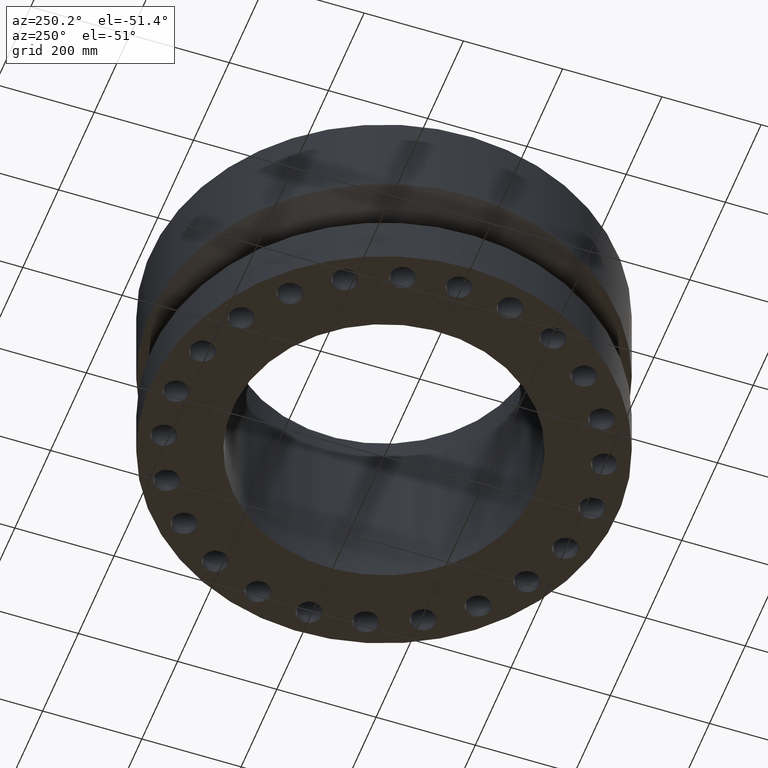
[diagram: clean part render]
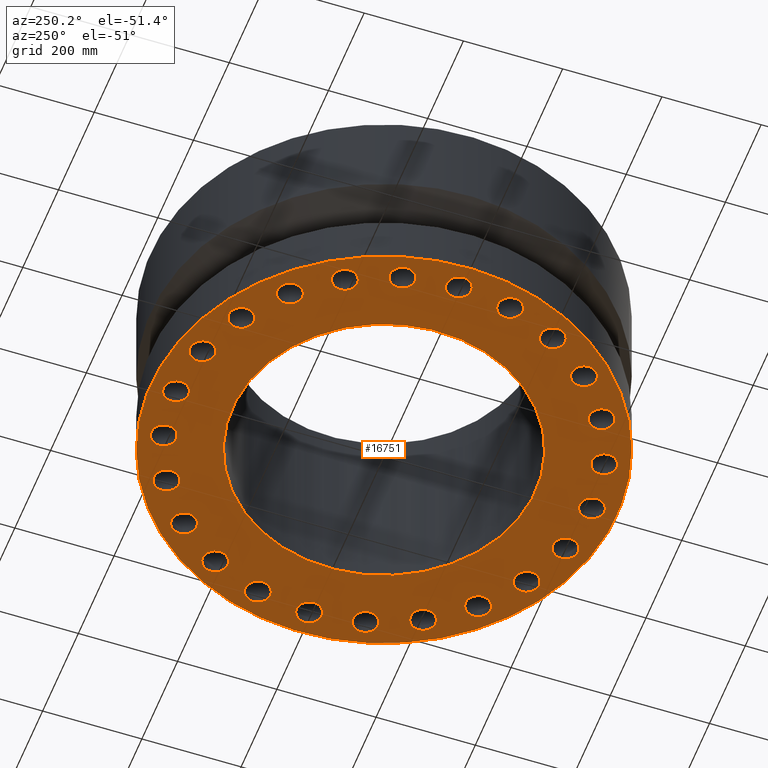
[diagram: same view with one face highlighted and labeled with its STEP entity id]
A machine part, auxiliary view. The second image highlights one B-rep face of the part: STEP entity #16751.
In plain terms, the highlighted planar face has unit normal (0, 0, 1).
Its self-contained STEP definition (entity closure, byte-faithful):
#51=AXIS2_PLACEMENT_3D('Circle Axis2P3D',#49,#50,$) ;
#560=AXIS2_PLACEMENT_3D('Circle Axis2P3D',#558,#559,$) ;
#577=AXIS2_PLACEMENT_3D('Circle Axis2P3D',#575,#576,$) ;
#603=AXIS2_PLACEMENT_3D('Circle Axis2P3D',#601,#602,$) ;
#670=AXIS2_PLACEMENT_3D('Circle Axis2P3D',#668,#669,$) ;
#689=AXIS2_PLACEMENT_3D('Circle Axis2P3D',#687,#688,$) ;
#713=AXIS2_PLACEMENT_3D('Circle Axis2P3D',#711,#712,$) ;
#732=AXIS2_PLACEMENT_3D('Circle Axis2P3D',#730,#731,$) ;
#756=AXIS2_PLACEMENT_3D('Circle Axis2P3D',#754,#755,$) ;
#775=AXIS2_PLACEMENT_3D('Circle Axis2P3D',#773,#774,$) ;
#799=AXIS2_PLACEMENT_3D('Circle Axis2P3D',#797,#798,$) ;
#818=AXIS2_PLACEMENT_3D('Circle Axis2P3D',#816,#817,$) ;
#842=AXIS2_PLACEMENT_3D('Circle Axis2P3D',#840,#841,$) ;
#861=AXIS2_PLACEMENT_3D('Circle Axis2P3D',#859,#860,$) ;
#885=AXIS2_PLACEMENT_3D('Circle Axis2P3D',#883,#884,$) ;
#904=AXIS2_PLACEMENT_3D('Circle Axis2P3D',#902,#903,$) ;
#928=AXIS2_PLACEMENT_3D('Circle Axis2P3D',#926,#927,$) ;
#947=AXIS2_PLACEMENT_3D('Circle Axis2P3D',#945,#946,$) ;
#971=AXIS2_PLACEMENT_3D('Circle Axis2P3D',#969,#970,$) ;
#990=AXIS2_PLACEMENT_3D('Circle Axis2P3D',#988,#989,$) ;
#1014=AXIS2_PLACEMENT_3D('Circle Axis2P3D',#1012,#1013,$) ;
#1033=AXIS2_PLACEMENT_3D('Circle Axis2P3D',#1031,#1032,$) ;
#1057=AXIS2_PLACEMENT_3D('Circle Axis2P3D',#1055,#1056,$) ;
#1076=AXIS2_PLACEMENT_3D('Circle Axis2P3D',#1074,#1075,$) ;
#1100=AXIS2_PLACEMENT_3D('Circle Axis2P3D',#1098,#1099,$) ;
#1119=AXIS2_PLACEMENT_3D('Circle Axis2P3D',#1117,#1118,$) ;
#1143=AXIS2_PLACEMENT_3D('Circle Axis2P3D',#1141,#1142,$) ;
#1162=AXIS2_PLACEMENT_3D('Circle Axis2P3D',#1160,#1161,$) ;
#1186=AXIS2_PLACEMENT_3D('Circle Axis2P3D',#1184,#1185,$) ;
#1205=AXIS2_PLACEMENT_3D('Circle Axis2P3D',#1203,#1204,$) ;
#1229=AXIS2_PLACEMENT_3D('Circle Axis2P3D',#1227,#1228,$) ;
#1248=AXIS2_PLACEMENT_3D('Circle Axis2P3D',#1246,#1247,$) ;
#1272=AXIS2_PLACEMENT_3D('Circle Axis2P3D',#1270,#1271,$) ;
#1291=AXIS2_PLACEMENT_3D('Circle Axis2P3D',#1289,#1290,$) ;
#1315=AXIS2_PLACEMENT_3D('Circle Axis2P3D',#1313,#1314,$) ;
#1334=AXIS2_PLACEMENT_3D('Circle Axis2P3D',#1332,#1333,$) ;
#1358=AXIS2_PLACEMENT_3D('Circle Axis2P3D',#1356,#1357,$) ;
#1377=AXIS2_PLACEMENT_3D('Circle Axis2P3D',#1375,#1376,$) ;
#1401=AXIS2_PLACEMENT_3D('Circle Axis2P3D',#1399,#1400,$) ;
#1420=AXIS2_PLACEMENT_3D('Circle Axis2P3D',#1418,#1419,$) ;
#1444=AXIS2_PLACEMENT_3D('Circle Axis2P3D',#1442,#1443,$) ;
#1463=AXIS2_PLACEMENT_3D('Circle Axis2P3D',#1461,#1462,$) ;
#1487=AXIS2_PLACEMENT_3D('Circle Axis2P3D',#1485,#1486,$) ;
#1506=AXIS2_PLACEMENT_3D('Circle Axis2P3D',#1504,#1505,$) ;
#1530=AXIS2_PLACEMENT_3D('Circle Axis2P3D',#1528,#1529,$) ;
#1549=AXIS2_PLACEMENT_3D('Circle Axis2P3D',#1547,#1548,$) ;
#1573=AXIS2_PLACEMENT_3D('Circle Axis2P3D',#1571,#1572,$) ;
#1592=AXIS2_PLACEMENT_3D('Circle Axis2P3D',#1590,#1591,$) ;
#1616=AXIS2_PLACEMENT_3D('Circle Axis2P3D',#1614,#1615,$) ;
#1635=AXIS2_PLACEMENT_3D('Circle Axis2P3D',#1633,#1634,$) ;
#16606=AXIS2_PLACEMENT_3D('Circle Axis2P3D',#16604,#16605,$) ;
#16632=AXIS2_PLACEMENT_3D('Circle Axis2P3D',#16630,#16631,$) ;
#16645=AXIS2_PLACEMENT_3D('Plane Axis2P3D',#16642,#16643,#16644) ;
#46=CARTESIAN_POINT('Vertex',(17.377582562,0.479425538606,2.2401153548E-016)) ;
#49=CARTESIAN_POINT('Axis2P3D Location',(16.5000000001,0.,0.)) ;
#53=CARTESIAN_POINT('Vertex',(15.6224174382,-0.479425538606,2.2401153548E-016)) ;
#558=CARTESIAN_POINT('Axis2P3D Location',(16.5000000001,0.,0.)) ;
#575=CARTESIAN_POINT('Axis2P3D Location',(0.,0.,2.23792987641E-015)) ;
#579=CARTESIAN_POINT('Vertex',(-8.86937246421,-16.235277395,2.23792987641E-015)) ;
#581=CARTESIAN_POINT('Vertex',(8.86937246421,16.235277395,2.23792987641E-015)) ;
#601=CARTESIAN_POINT('Axis2P3D Location',(0.,0.,2.23792987641E-015)) ;
#665=CARTESIAN_POINT('Vertex',(16.9095402552,-4.03455981535,2.2401153548E-016)) ;
#668=CARTESIAN_POINT('Axis2P3D Location',(15.9377761338,-4.27051424421,0.)) ;
#672=CARTESIAN_POINT('Vertex',(14.9660120125,-4.50646867306,2.2401153548E-016)) ;
#687=CARTESIAN_POINT('Axis2P3D Location',(15.9377761338,-4.27051424421,0.)) ;
#708=CARTESIAN_POINT('Vertex',(15.2891407243,-8.27359658532,2.2401153548E-016)) ;
#711=CARTESIAN_POINT('Axis2P3D Location',(14.2894191625,-8.25000000003,0.)) ;
#715=CARTESIAN_POINT('Vertex',(13.2896976007,-8.22640341474,2.2401153548E-016)) ;
#730=CARTESIAN_POINT('Axis2P3D Location',(14.2894191625,-8.25000000003,0.)) ;
#751=CARTESIAN_POINT('Vertex',(12.6268115196,-11.9488014208,2.2401153548E-016)) ;
#754=CARTESIAN_POINT('Axis2P3D Location',(11.6672618896,-11.6672618896,0.)) ;
#758=CARTESIAN_POINT('Vertex',(10.7077122596,-11.3857223585,2.2401153548E-016)) ;
#773=CARTESIAN_POINT('Axis2P3D Location',(11.6672618896,-11.6672618896,0.)) ;
#794=CARTESIAN_POINT('Vertex',(9.10398597664,-14.8097151857,2.2401153548E-016)) ;
#797=CARTESIAN_POINT('Axis2P3D Location',(8.25000000003,-14.2894191625,0.)) ;
#801=CARTESIAN_POINT('Vertex',(7.39601402343,-13.7691231393,2.2401153548E-016)) ;
#816=CARTESIAN_POINT('Axis2P3D Location',(8.25000000003,-14.2894191625,0.)) ;
#837=CARTESIAN_POINT('Vertex',(4.9607388344,-16.661371335,2.2401153548E-016)) ;
#840=CARTESIAN_POINT('Axis2P3D Location',(4.27051424421,-15.9377761338,0.)) ;
#844=CARTESIAN_POINT('Vertex',(3.58028965402,-15.2141809327,2.2401153548E-016)) ;
#859=CARTESIAN_POINT('Axis2P3D Location',(4.27051424421,-15.9377761338,0.)) ;
#880=CARTESIAN_POINT('Vertex',(0.479425538606,-17.377582562,2.2401153548E-016)) ;
#883=CARTESIAN_POINT('Axis2P3D Location',(1.0103336093E-015,-16.5000000001,0.)) ;
#887=CARTESIAN_POINT('Vertex',(-0.479425538606,-15.6224174382,2.2401153548E-016)) ;
#902=CARTESIAN_POINT('Axis2P3D Location',(1.0103336093E-015,-16.5000000001,0.)) ;
#923=CARTESIAN_POINT('Vertex',(-4.03455981535,-16.9095402552,2.22918796283E-016)) ;
#926=CARTESIAN_POINT('Axis2P3D Location',(-4.27051424421,-15.9377761338,-2.18547839493E-018)) ;
#930=CARTESIAN_POINT('Vertex',(-4.50646867306,-14.9660120125,2.22918796283E-016)) ;
#945=CARTESIAN_POINT('Axis2P3D Location',(-4.27051424421,-15.9377761338,-2.18547839493E-018)) ;
#966=CARTESIAN_POINT('Vertex',(-8.27359658532,-15.2891407243,2.22372426684E-016)) ;
#969=CARTESIAN_POINT('Axis2P3D Location',(-8.25000000003,-14.2894191625,-3.2782175924E-018)) ;
#973=CARTESIAN_POINT('Vertex',(-8.22640341474,-13.2896976007,2.22372426684E-016)) ;
#988=CARTESIAN_POINT('Axis2P3D Location',(-8.25000000003,-14.2894191625,-3.2782175924E-018)) ;
#1009=CARTESIAN_POINT('Vertex',(-11.9488014208,-12.6268115196,2.2401153548E-016)) ;
#1012=CARTESIAN_POINT('Axis2P3D Location',(-11.6672618896,-11.6672618896,0.)) ;
#1016=CARTESIAN_POINT('Vertex',(-11.3857223585,-10.7077122596,2.2401153548E-016)) ;
#1031=CARTESIAN_POINT('Axis2P3D Location',(-11.6672618896,-11.6672618896,0.)) ;
#1052=CARTESIAN_POINT('Vertex',(-14.8097151857,-9.10398597664,2.2401153548E-016)) ;
#1055=CARTESIAN_POINT('Axis2P3D Location',(-14.2894191625,-8.25000000003,0.)) ;
#1059=CARTESIAN_POINT('Vertex',(-13.7691231393,-7.39601402343,2.2401153548E-016)) ;
#1074=CARTESIAN_POINT('Axis2P3D Location',(-14.2894191625,-8.25000000003,0.)) ;
#1095=CARTESIAN_POINT('Vertex',(-16.661371335,-4.9607388344,2.2401153548E-016)) ;
#1098=CARTESIAN_POINT('Axis2P3D Location',(-15.9377761338,-4.27051424421,0.)) ;
#1102=CARTESIAN_POINT('Vertex',(-15.2141809327,-3.58028965402,2.2401153548E-016)) ;
#1117=CARTESIAN_POINT('Axis2P3D Location',(-15.9377761338,-4.27051424421,0.)) ;
#1138=CARTESIAN_POINT('Vertex',(-17.377582562,-0.479425538606,2.2401153548E-016)) ;
#1141=CARTESIAN_POINT('Axis2P3D Location',(-16.5000000001,-2.0206672186E-015,0.)) ;
#1145=CARTESIAN_POINT('Vertex',(-15.6224174382,0.479425538606,2.2401153548E-016)) ;
#1160=CARTESIAN_POINT('Axis2P3D Location',(-16.5000000001,-2.0206672186E-015,0.)) ;
#1181=CARTESIAN_POINT('Vertex',(-16.9095402552,4.03455981535,2.2401153548E-016)) ;
#1184=CARTESIAN_POINT('Axis2P3D Location',(-15.9377761338,4.27051424421,0.)) ;
#1188=CARTESIAN_POINT('Vertex',(-14.9660120125,4.50646867306,2.2401153548E-016)) ;
#1203=CARTESIAN_POINT('Axis2P3D Location',(-15.9377761338,4.27051424421,0.)) ;
#1224=CARTESIAN_POINT('Vertex',(-15.2891407243,8.27359658532,2.2401153548E-016)) ;
#1227=CARTESIAN_POINT('Axis2P3D Location',(-14.2894191625,8.25000000003,0.)) ;
#1231=CARTESIAN_POINT('Vertex',(-13.2896976007,8.22640341474,2.2401153548E-016)) ;
#1246=CARTESIAN_POINT('Axis2P3D Location',(-14.2894191625,8.25000000003,0.)) ;
#1267=CARTESIAN_POINT('Vertex',(-12.6268115196,11.9488014208,2.2401153548E-016)) ;
#1270=CARTESIAN_POINT('Axis2P3D Location',(-11.6672618896,11.6672618896,0.)) ;
#1274=CARTESIAN_POINT('Vertex',(-10.7077122596,11.3857223585,2.2401153548E-016)) ;
#1289=CARTESIAN_POINT('Axis2P3D Location',(-11.6672618896,11.6672618896,0.)) ;
#1310=CARTESIAN_POINT('Vertex',(-9.10398597664,14.8097151857,2.2401153548E-016)) ;
#1313=CARTESIAN_POINT('Axis2P3D Location',(-8.25000000003,14.2894191625,0.)) ;
#1317=CARTESIAN_POINT('Vertex',(-7.39601402343,13.7691231393,2.2401153548E-016)) ;
#1332=CARTESIAN_POINT('Axis2P3D Location',(-8.25000000003,14.2894191625,0.)) ;
#1353=CARTESIAN_POINT('Vertex',(-4.9607388344,16.661371335,2.2401153548E-016)) ;
#1356=CARTESIAN_POINT('Axis2P3D Location',(-4.27051424421,15.9377761338,0.)) ;
#1360=CARTESIAN_POINT('Vertex',(-3.58028965402,15.2141809327,2.2401153548E-016)) ;
#1375=CARTESIAN_POINT('Axis2P3D Location',(-4.27051424421,15.9377761338,0.)) ;
#1396=CARTESIAN_POINT('Vertex',(-0.479425538606,17.377582562,2.2401153548E-016)) ;
#1399=CARTESIAN_POINT('Axis2P3D Location',(-7.93070951492E-016,16.5000000001,0.)) ;
#1403=CARTESIAN_POINT('Vertex',(0.479425538606,15.6224174382,2.2401153548E-016)) ;
#1418=CARTESIAN_POINT('Axis2P3D Location',(-7.93070951492E-016,16.5000000001,0.)) ;
#1439=CARTESIAN_POINT('Vertex',(4.03455981535,16.9095402552,2.2401153548E-016)) ;
#1442=CARTESIAN_POINT('Axis2P3D Location',(4.27051424421,15.9377761338,0.)) ;
#1446=CARTESIAN_POINT('Vertex',(4.50646867306,14.9660120125,2.2401153548E-016)) ;
#1461=CARTESIAN_POINT('Axis2P3D Location',(4.27051424421,15.9377761338,0.)) ;
#1482=CARTESIAN_POINT('Vertex',(8.27359658532,15.2891407243,2.2401153548E-016)) ;
#1485=CARTESIAN_POINT('Axis2P3D Location',(8.25000000003,14.2894191625,0.)) ;
#1489=CARTESIAN_POINT('Vertex',(8.22640341474,13.2896976007,2.2401153548E-016)) ;
#1504=CARTESIAN_POINT('Axis2P3D Location',(8.25000000003,14.2894191625,0.)) ;
#1525=CARTESIAN_POINT('Vertex',(11.9488014208,12.6268115196,2.2401153548E-016)) ;
#1528=CARTESIAN_POINT('Axis2P3D Location',(11.6672618896,11.6672618896,0.)) ;
#1532=CARTESIAN_POINT('Vertex',(11.3857223585,10.7077122596,2.2401153548E-016)) ;
#1547=CARTESIAN_POINT('Axis2P3D Location',(11.6672618896,11.6672618896,0.)) ;
#1568=CARTESIAN_POINT('Vertex',(14.8097151857,9.10398597664,2.2401153548E-016)) ;
#1571=CARTESIAN_POINT('Axis2P3D Location',(14.2894191625,8.25000000003,0.)) ;
#1575=CARTESIAN_POINT('Vertex',(13.7691231393,7.39601402343,2.2401153548E-016)) ;
#1590=CARTESIAN_POINT('Axis2P3D Location',(14.2894191625,8.25000000003,0.)) ;
#1611=CARTESIAN_POINT('Vertex',(16.661371335,4.9607388344,2.2401153548E-016)) ;
#1614=CARTESIAN_POINT('Axis2P3D Location',(15.9377761338,4.27051424421,0.)) ;
#1618=CARTESIAN_POINT('Vertex',(15.2141809327,3.58028965402,2.2401153548E-016)) ;
#1633=CARTESIAN_POINT('Axis2P3D Location',(15.9377761338,4.27051424421,0.)) ;
#16604=CARTESIAN_POINT('Axis2P3D Location',(0.,0.,0.)) ;
#16608=CARTESIAN_POINT('Vertex',(-5.75310646327,-10.5309907427,0.)) ;
#16610=CARTESIAN_POINT('Vertex',(5.75310646327,10.5309907427,0.)) ;
#16630=CARTESIAN_POINT('Axis2P3D Location',(0.,0.,0.)) ;
#16642=CARTESIAN_POINT('Axis2P3D Location',(0.,0.,0.)) ;
#50=DIRECTION('Axis2P3D Direction',(0.,-0.,0.0393700787402)) ;
#559=DIRECTION('Axis2P3D Direction',(0.,-0.,0.0393700787402)) ;
#576=DIRECTION('Axis2P3D Direction',(0.,0.,-0.0393700787402)) ;
#602=DIRECTION('Axis2P3D Direction',(0.,0.,-0.0393700787402)) ;
#669=DIRECTION('Axis2P3D Direction',(-0.,0.,0.0393700787402)) ;
#688=DIRECTION('Axis2P3D Direction',(-0.,0.,0.0393700787402)) ;
#712=DIRECTION('Axis2P3D Direction',(-0.,0.,0.0393700787402)) ;
#731=DIRECTION('Axis2P3D Direction',(-0.,0.,0.0393700787402)) ;
#755=DIRECTION('Axis2P3D Direction',(-0.,0.,0.0393700787402)) ;
#774=DIRECTION('Axis2P3D Direction',(-0.,0.,0.0393700787402)) ;
#798=DIRECTION('Axis2P3D Direction',(-0.,0.,0.0393700787402)) ;
#817=DIRECTION('Axis2P3D Direction',(-0.,0.,0.0393700787402)) ;
#841=DIRECTION('Axis2P3D Direction',(-0.,0.,0.0393700787402)) ;
#860=DIRECTION('Axis2P3D Direction',(-0.,0.,0.0393700787402)) ;
#884=DIRECTION('Axis2P3D Direction',(-0.,0.,0.0393700787402)) ;
#903=DIRECTION('Axis2P3D Direction',(-0.,0.,0.0393700787402)) ;
#927=DIRECTION('Axis2P3D Direction',(0.,0.,0.0393700787402)) ;
#946=DIRECTION('Axis2P3D Direction',(0.,0.,0.0393700787402)) ;
#970=DIRECTION('Axis2P3D Direction',(0.,0.,0.0393700787402)) ;
#989=DIRECTION('Axis2P3D Direction',(0.,0.,0.0393700787402)) ;
#1013=DIRECTION('Axis2P3D Direction',(0.,0.,0.0393700787402)) ;
#1032=DIRECTION('Axis2P3D Direction',(0.,0.,0.0393700787402)) ;
#1056=DIRECTION('Axis2P3D Direction',(0.,0.,0.0393700787402)) ;
#1075=DIRECTION('Axis2P3D Direction',(0.,0.,0.0393700787402)) ;
#1099=DIRECTION('Axis2P3D Direction',(0.,0.,0.0393700787402)) ;
#1118=DIRECTION('Axis2P3D Direction',(0.,0.,0.0393700787402)) ;
#1142=DIRECTION('Axis2P3D Direction',(0.,0.,0.0393700787402)) ;
#1161=DIRECTION('Axis2P3D Direction',(0.,0.,0.0393700787402)) ;
#1185=DIRECTION('Axis2P3D Direction',(0.,0.,0.0393700787402)) ;
#1204=DIRECTION('Axis2P3D Direction',(0.,0.,0.0393700787402)) ;
#1228=DIRECTION('Axis2P3D Direction',(0.,0.,0.0393700787402)) ;
#1247=DIRECTION('Axis2P3D Direction',(0.,0.,0.0393700787402)) ;
#1271=DIRECTION('Axis2P3D Direction',(0.,0.,0.0393700787402)) ;
#1290=DIRECTION('Axis2P3D Direction',(0.,0.,0.0393700787402)) ;
#1314=DIRECTION('Axis2P3D Direction',(0.,0.,0.0393700787402)) ;
#1333=DIRECTION('Axis2P3D Direction',(0.,0.,0.0393700787402)) ;
#1357=DIRECTION('Axis2P3D Direction',(0.,0.,0.0393700787402)) ;
#1376=DIRECTION('Axis2P3D Direction',(0.,0.,0.0393700787402)) ;
#1400=DIRECTION('Axis2P3D Direction',(0.,0.,0.0393700787402)) ;
#1419=DIRECTION('Axis2P3D Direction',(0.,0.,0.0393700787402)) ;
#1443=DIRECTION('Axis2P3D Direction',(0.,-0.,0.0393700787402)) ;
#1462=DIRECTION('Axis2P3D Direction',(0.,-0.,0.0393700787402)) ;
#1486=DIRECTION('Axis2P3D Direction',(0.,-0.,0.0393700787402)) ;
#1505=DIRECTION('Axis2P3D Direction',(0.,-0.,0.0393700787402)) ;
#1529=DIRECTION('Axis2P3D Direction',(0.,-0.,0.0393700787402)) ;
#1548=DIRECTION('Axis2P3D Direction',(0.,-0.,0.0393700787402)) ;
#1572=DIRECTION('Axis2P3D Direction',(0.,-0.,0.0393700787402)) ;
#1591=DIRECTION('Axis2P3D Direction',(0.,-0.,0.0393700787402)) ;
#1615=DIRECTION('Axis2P3D Direction',(0.,-0.,0.0393700787402)) ;
#1634=DIRECTION('Axis2P3D Direction',(0.,-0.,0.0393700787402)) ;
#16605=DIRECTION('Axis2P3D Direction',(0.,0.,-0.0393700787402)) ;
#16631=DIRECTION('Axis2P3D Direction',(0.,0.,-0.0393700787402)) ;
#16643=DIRECTION('Axis2P3D Direction',(0.,0.,0.0393700787402)) ;
#16644=DIRECTION('Axis2P3D XDirection',(0.0393700787402,0.,0.)) ;
#16648=ORIENTED_EDGE('',*,*,#605,.T.) ;
#16649=ORIENTED_EDGE('',*,*,#583,.T.) ;
#16652=ORIENTED_EDGE('',*,*,#1620,.F.) ;
#16653=ORIENTED_EDGE('',*,*,#1637,.F.) ;
#16656=ORIENTED_EDGE('',*,*,#1577,.F.) ;
#16657=ORIENTED_EDGE('',*,*,#1594,.F.) ;
#16660=ORIENTED_EDGE('',*,*,#1534,.F.) ;
#16661=ORIENTED_EDGE('',*,*,#1551,.F.) ;
#16664=ORIENTED_EDGE('',*,*,#1491,.F.) ;
#16665=ORIENTED_EDGE('',*,*,#1508,.F.) ;
#16668=ORIENTED_EDGE('',*,*,#1448,.F.) ;
#16669=ORIENTED_EDGE('',*,*,#1465,.F.) ;
#16672=ORIENTED_EDGE('',*,*,#1405,.F.) ;
#16673=ORIENTED_EDGE('',*,*,#1422,.F.) ;
#16676=ORIENTED_EDGE('',*,*,#1362,.F.) ;
#16677=ORIENTED_EDGE('',*,*,#1379,.F.) ;
#16680=ORIENTED_EDGE('',*,*,#1319,.F.) ;
#16681=ORIENTED_EDGE('',*,*,#1336,.F.) ;
#16684=ORIENTED_EDGE('',*,*,#1276,.F.) ;
#16685=ORIENTED_EDGE('',*,*,#1293,.F.) ;
#16688=ORIENTED_EDGE('',*,*,#1233,.F.) ;
#16689=ORIENTED_EDGE('',*,*,#1250,.F.) ;
#16692=ORIENTED_EDGE('',*,*,#1190,.F.) ;
#16693=ORIENTED_EDGE('',*,*,#1207,.F.) ;
#16696=ORIENTED_EDGE('',*,*,#1147,.F.) ;
#16697=ORIENTED_EDGE('',*,*,#1164,.F.) ;
#16700=ORIENTED_EDGE('',*,*,#1104,.F.) ;
#16701=ORIENTED_EDGE('',*,*,#1121,.F.) ;
#16704=ORIENTED_EDGE('',*,*,#1061,.F.) ;
#16705=ORIENTED_EDGE('',*,*,#1078,.F.) ;
#16708=ORIENTED_EDGE('',*,*,#1018,.F.) ;
#16709=ORIENTED_EDGE('',*,*,#1035,.F.) ;
#16712=ORIENTED_EDGE('',*,*,#975,.F.) ;
#16713=ORIENTED_EDGE('',*,*,#992,.F.) ;
#16716=ORIENTED_EDGE('',*,*,#932,.F.) ;
#16717=ORIENTED_EDGE('',*,*,#949,.F.) ;
#16720=ORIENTED_EDGE('',*,*,#889,.F.) ;
#16721=ORIENTED_EDGE('',*,*,#906,.F.) ;
#16724=ORIENTED_EDGE('',*,*,#846,.F.) ;
#16725=ORIENTED_EDGE('',*,*,#863,.F.) ;
#16728=ORIENTED_EDGE('',*,*,#803,.F.) ;
#16729=ORIENTED_EDGE('',*,*,#820,.F.) ;
#16732=ORIENTED_EDGE('',*,*,#760,.F.) ;
#16733=ORIENTED_EDGE('',*,*,#777,.F.) ;
#16736=ORIENTED_EDGE('',*,*,#717,.F.) ;
#16737=ORIENTED_EDGE('',*,*,#734,.F.) ;
#16740=ORIENTED_EDGE('',*,*,#674,.F.) ;
#16741=ORIENTED_EDGE('',*,*,#691,.F.) ;
#16744=ORIENTED_EDGE('',*,*,#562,.F.) ;
#16745=ORIENTED_EDGE('',*,*,#55,.F.) ;
#16748=ORIENTED_EDGE('',*,*,#16634,.T.) ;
#16749=ORIENTED_EDGE('',*,*,#16612,.T.) ;
#16654=FACE_BOUND('',#16651,.T.) ;
#16658=FACE_BOUND('',#16655,.T.) ;
#16662=FACE_BOUND('',#16659,.T.) ;
#16666=FACE_BOUND('',#16663,.T.) ;
#16670=FACE_BOUND('',#16667,.T.) ;
#16674=FACE_BOUND('',#16671,.T.) ;
#16678=FACE_BOUND('',#16675,.T.) ;
#16682=FACE_BOUND('',#16679,.T.) ;
#16686=FACE_BOUND('',#16683,.T.) ;
#16690=FACE_BOUND('',#16687,.T.) ;
#16694=FACE_BOUND('',#16691,.T.) ;
#16698=FACE_BOUND('',#16695,.T.) ;
#16702=FACE_BOUND('',#16699,.T.) ;
#16706=FACE_BOUND('',#16703,.T.) ;
#16710=FACE_BOUND('',#16707,.T.) ;
#16714=FACE_BOUND('',#16711,.T.) ;
#16718=FACE_BOUND('',#16715,.T.) ;
#16722=FACE_BOUND('',#16719,.T.) ;
#16726=FACE_BOUND('',#16723,.T.) ;
#16730=FACE_BOUND('',#16727,.T.) ;
#16734=FACE_BOUND('',#16731,.T.) ;
#16738=FACE_BOUND('',#16735,.T.) ;
#16742=FACE_BOUND('',#16739,.T.) ;
#16746=FACE_BOUND('',#16743,.T.) ;
#16750=FACE_BOUND('',#16747,.T.) ;
#16751=ADVANCED_FACE('PartBody',(#16650,#16654,#16658,#16662,#16666,#16670,#16674,#16678,#16682,#16686,#16690,#16694,#16698,#16702,#16706,#16710,#16714,#16718,#16722,#16726,#16730,#16734,#16738,#16742,#16746,#16750),#16646,.F.) ;
#52=CIRCLE('generated circle',#51,1.) ;
#561=CIRCLE('generated circle',#560,1.) ;
#578=CIRCLE('generated circle',#577,18.5000000001) ;
#604=CIRCLE('generated circle',#603,18.5000000001) ;
#671=CIRCLE('generated circle',#670,1.) ;
#690=CIRCLE('generated circle',#689,1.) ;
#714=CIRCLE('generated circle',#713,1.) ;
#733=CIRCLE('generated circle',#732,1.) ;
#757=CIRCLE('generated circle',#756,1.) ;
#776=CIRCLE('generated circle',#775,1.) ;
#800=CIRCLE('generated circle',#799,1.) ;
#819=CIRCLE('generated circle',#818,1.) ;
#843=CIRCLE('generated circle',#842,1.) ;
#862=CIRCLE('generated circle',#861,1.) ;
#886=CIRCLE('generated circle',#885,1.) ;
#905=CIRCLE('generated circle',#904,1.) ;
#929=CIRCLE('generated circle',#928,1.) ;
#948=CIRCLE('generated circle',#947,1.) ;
#972=CIRCLE('generated circle',#971,1.) ;
#991=CIRCLE('generated circle',#990,1.) ;
#1015=CIRCLE('generated circle',#1014,1.) ;
#1034=CIRCLE('generated circle',#1033,1.) ;
#1058=CIRCLE('generated circle',#1057,1.) ;
#1077=CIRCLE('generated circle',#1076,1.) ;
#1101=CIRCLE('generated circle',#1100,1.) ;
#1120=CIRCLE('generated circle',#1119,1.) ;
#1144=CIRCLE('generated circle',#1143,1.) ;
#1163=CIRCLE('generated circle',#1162,1.) ;
#1187=CIRCLE('generated circle',#1186,1.) ;
#1206=CIRCLE('generated circle',#1205,1.) ;
#1230=CIRCLE('generated circle',#1229,1.) ;
#1249=CIRCLE('generated circle',#1248,1.) ;
#1273=CIRCLE('generated circle',#1272,1.) ;
#1292=CIRCLE('generated circle',#1291,1.) ;
#1316=CIRCLE('generated circle',#1315,1.) ;
#1335=CIRCLE('generated circle',#1334,1.) ;
#1359=CIRCLE('generated circle',#1358,1.) ;
#1378=CIRCLE('generated circle',#1377,1.) ;
#1402=CIRCLE('generated circle',#1401,1.) ;
#1421=CIRCLE('generated circle',#1420,1.) ;
#1445=CIRCLE('generated circle',#1444,1.) ;
#1464=CIRCLE('generated circle',#1463,1.) ;
#1488=CIRCLE('generated circle',#1487,1.) ;
#1507=CIRCLE('generated circle',#1506,1.) ;
#1531=CIRCLE('generated circle',#1530,1.) ;
#1550=CIRCLE('generated circle',#1549,1.) ;
#1574=CIRCLE('generated circle',#1573,1.) ;
#1593=CIRCLE('generated circle',#1592,1.) ;
#1617=CIRCLE('generated circle',#1616,1.) ;
#1636=CIRCLE('generated circle',#1635,1.) ;
#16607=CIRCLE('generated circle',#16606,12.) ;
#16633=CIRCLE('generated circle',#16632,12.) ;
#55=EDGE_CURVE('',#47,#54,#52,.F.) ;
#562=EDGE_CURVE('',#54,#47,#561,.F.) ;
#583=EDGE_CURVE('',#580,#582,#578,.T.) ;
#605=EDGE_CURVE('',#582,#580,#604,.T.) ;
#674=EDGE_CURVE('',#666,#673,#671,.F.) ;
#691=EDGE_CURVE('',#673,#666,#690,.F.) ;
#717=EDGE_CURVE('',#709,#716,#714,.F.) ;
#734=EDGE_CURVE('',#716,#709,#733,.F.) ;
#760=EDGE_CURVE('',#752,#759,#757,.F.) ;
#777=EDGE_CURVE('',#759,#752,#776,.F.) ;
#803=EDGE_CURVE('',#795,#802,#800,.F.) ;
#820=EDGE_CURVE('',#802,#795,#819,.F.) ;
#846=EDGE_CURVE('',#838,#845,#843,.F.) ;
#863=EDGE_CURVE('',#845,#838,#862,.F.) ;
#889=EDGE_CURVE('',#881,#888,#886,.F.) ;
#906=EDGE_CURVE('',#888,#881,#905,.F.) ;
#932=EDGE_CURVE('',#924,#931,#929,.F.) ;
#949=EDGE_CURVE('',#931,#924,#948,.F.) ;
#975=EDGE_CURVE('',#967,#974,#972,.F.) ;
#992=EDGE_CURVE('',#974,#967,#991,.F.) ;
#1018=EDGE_CURVE('',#1010,#1017,#1015,.F.) ;
#1035=EDGE_CURVE('',#1017,#1010,#1034,.F.) ;
#1061=EDGE_CURVE('',#1053,#1060,#1058,.F.) ;
#1078=EDGE_CURVE('',#1060,#1053,#1077,.F.) ;
#1104=EDGE_CURVE('',#1096,#1103,#1101,.F.) ;
#1121=EDGE_CURVE('',#1103,#1096,#1120,.F.) ;
#1147=EDGE_CURVE('',#1139,#1146,#1144,.F.) ;
#1164=EDGE_CURVE('',#1146,#1139,#1163,.F.) ;
#1190=EDGE_CURVE('',#1182,#1189,#1187,.F.) ;
#1207=EDGE_CURVE('',#1189,#1182,#1206,.F.) ;
#1233=EDGE_CURVE('',#1225,#1232,#1230,.F.) ;
#1250=EDGE_CURVE('',#1232,#1225,#1249,.F.) ;
#1276=EDGE_CURVE('',#1268,#1275,#1273,.F.) ;
#1293=EDGE_CURVE('',#1275,#1268,#1292,.F.) ;
#1319=EDGE_CURVE('',#1311,#1318,#1316,.F.) ;
#1336=EDGE_CURVE('',#1318,#1311,#1335,.F.) ;
#1362=EDGE_CURVE('',#1354,#1361,#1359,.F.) ;
#1379=EDGE_CURVE('',#1361,#1354,#1378,.F.) ;
#1405=EDGE_CURVE('',#1397,#1404,#1402,.F.) ;
#1422=EDGE_CURVE('',#1404,#1397,#1421,.F.) ;
#1448=EDGE_CURVE('',#1440,#1447,#1445,.F.) ;
#1465=EDGE_CURVE('',#1447,#1440,#1464,.F.) ;
#1491=EDGE_CURVE('',#1483,#1490,#1488,.F.) ;
#1508=EDGE_CURVE('',#1490,#1483,#1507,.F.) ;
#1534=EDGE_CURVE('',#1526,#1533,#1531,.F.) ;
#1551=EDGE_CURVE('',#1533,#1526,#1550,.F.) ;
#1577=EDGE_CURVE('',#1569,#1576,#1574,.F.) ;
#1594=EDGE_CURVE('',#1576,#1569,#1593,.F.) ;
#1620=EDGE_CURVE('',#1612,#1619,#1617,.F.) ;
#1637=EDGE_CURVE('',#1619,#1612,#1636,.F.) ;
#16612=EDGE_CURVE('',#16609,#16611,#16607,.F.) ;
#16634=EDGE_CURVE('',#16611,#16609,#16633,.F.) ;
#16647=EDGE_LOOP('',(#16648,#16649)) ;
#16651=EDGE_LOOP('',(#16652,#16653)) ;
#16655=EDGE_LOOP('',(#16656,#16657)) ;
#16659=EDGE_LOOP('',(#16660,#16661)) ;
#16663=EDGE_LOOP('',(#16664,#16665)) ;
#16667=EDGE_LOOP('',(#16668,#16669)) ;
#16671=EDGE_LOOP('',(#16672,#16673)) ;
#16675=EDGE_LOOP('',(#16676,#16677)) ;
#16679=EDGE_LOOP('',(#16680,#16681)) ;
#16683=EDGE_LOOP('',(#16684,#16685)) ;
#16687=EDGE_LOOP('',(#16688,#16689)) ;
#16691=EDGE_LOOP('',(#16692,#16693)) ;
#16695=EDGE_LOOP('',(#16696,#16697)) ;
#16699=EDGE_LOOP('',(#16700,#16701)) ;
#16703=EDGE_LOOP('',(#16704,#16705)) ;
#16707=EDGE_LOOP('',(#16708,#16709)) ;
#16711=EDGE_LOOP('',(#16712,#16713)) ;
#16715=EDGE_LOOP('',(#16716,#16717)) ;
#16719=EDGE_LOOP('',(#16720,#16721)) ;
#16723=EDGE_LOOP('',(#16724,#16725)) ;
#16727=EDGE_LOOP('',(#16728,#16729)) ;
#16731=EDGE_LOOP('',(#16732,#16733)) ;
#16735=EDGE_LOOP('',(#16736,#16737)) ;
#16739=EDGE_LOOP('',(#16740,#16741)) ;
#16743=EDGE_LOOP('',(#16744,#16745)) ;
#16747=EDGE_LOOP('',(#16748,#16749)) ;
#16650=FACE_OUTER_BOUND('',#16647,.T.) ;
#16646=PLANE('',#16645) ;
#47=VERTEX_POINT('',#46) ;
#54=VERTEX_POINT('',#53) ;
#580=VERTEX_POINT('',#579) ;
#582=VERTEX_POINT('',#581) ;
#666=VERTEX_POINT('',#665) ;
#673=VERTEX_POINT('',#672) ;
#709=VERTEX_POINT('',#708) ;
#716=VERTEX_POINT('',#715) ;
#752=VERTEX_POINT('',#751) ;
#759=VERTEX_POINT('',#758) ;
#795=VERTEX_POINT('',#794) ;
#802=VERTEX_POINT('',#801) ;
#838=VERTEX_POINT('',#837) ;
#845=VERTEX_POINT('',#844) ;
#881=VERTEX_POINT('',#880) ;
#888=VERTEX_POINT('',#887) ;
#924=VERTEX_POINT('',#923) ;
#931=VERTEX_POINT('',#930) ;
#967=VERTEX_POINT('',#966) ;
#974=VERTEX_POINT('',#973) ;
#1010=VERTEX_POINT('',#1009) ;
#1017=VERTEX_POINT('',#1016) ;
#1053=VERTEX_POINT('',#1052) ;
#1060=VERTEX_POINT('',#1059) ;
#1096=VERTEX_POINT('',#1095) ;
#1103=VERTEX_POINT('',#1102) ;
#1139=VERTEX_POINT('',#1138) ;
#1146=VERTEX_POINT('',#1145) ;
#1182=VERTEX_POINT('',#1181) ;
#1189=VERTEX_POINT('',#1188) ;
#1225=VERTEX_POINT('',#1224) ;
#1232=VERTEX_POINT('',#1231) ;
#1268=VERTEX_POINT('',#1267) ;
#1275=VERTEX_POINT('',#1274) ;
#1311=VERTEX_POINT('',#1310) ;
#1318=VERTEX_POINT('',#1317) ;
#1354=VERTEX_POINT('',#1353) ;
#1361=VERTEX_POINT('',#1360) ;
#1397=VERTEX_POINT('',#1396) ;
#1404=VERTEX_POINT('',#1403) ;
#1440=VERTEX_POINT('',#1439) ;
#1447=VERTEX_POINT('',#1446) ;
#1483=VERTEX_POINT('',#1482) ;
#1490=VERTEX_POINT('',#1489) ;
#1526=VERTEX_POINT('',#1525) ;
#1533=VERTEX_POINT('',#1532) ;
#1569=VERTEX_POINT('',#1568) ;
#1576=VERTEX_POINT('',#1575) ;
#1612=VERTEX_POINT('',#1611) ;
#1619=VERTEX_POINT('',#1618) ;
#16609=VERTEX_POINT('',#16608) ;
#16611=VERTEX_POINT('',#16610) ;